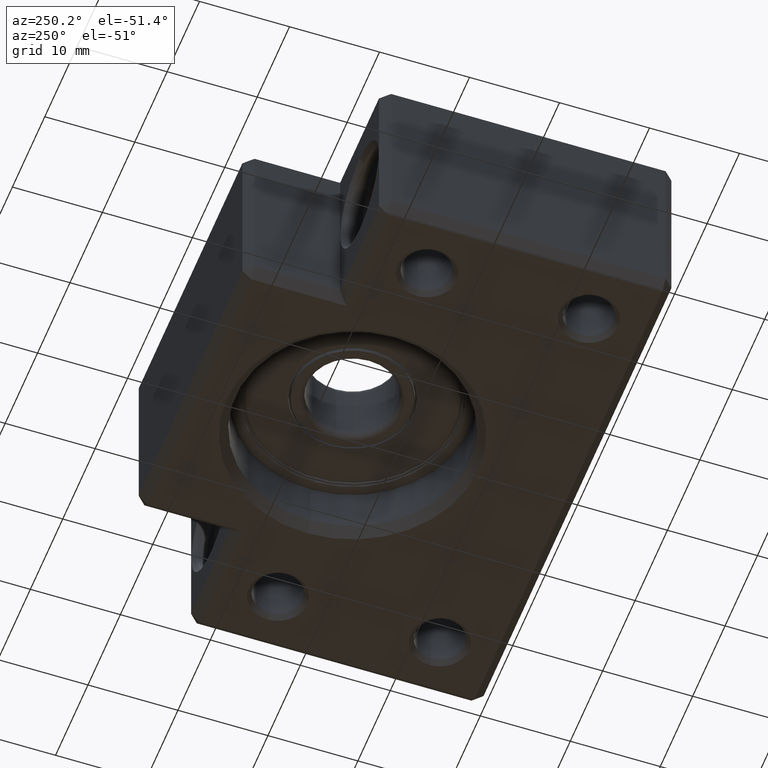
[diagram: clean part render]
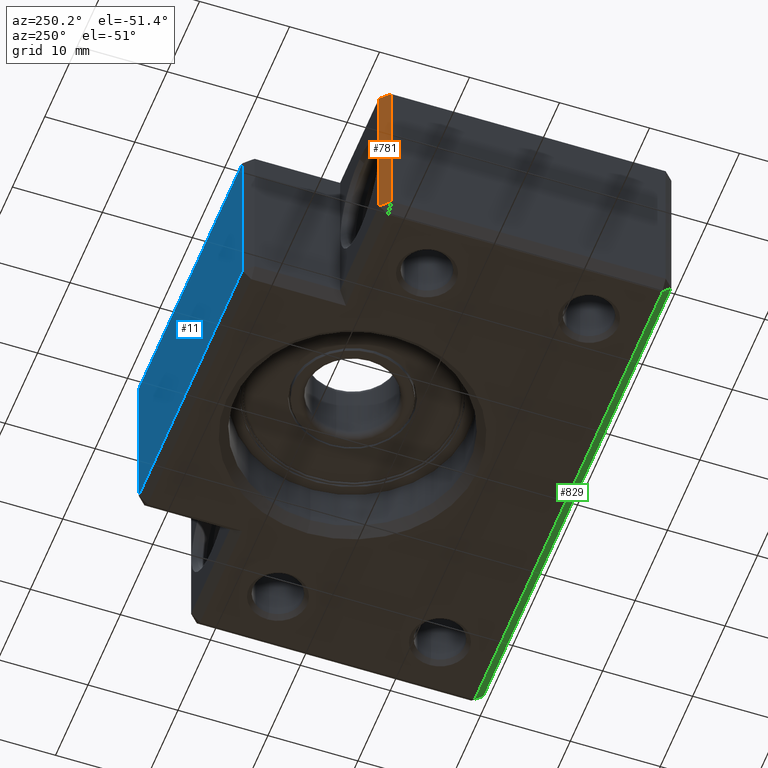
[diagram: same view with three faces highlighted in distinct colors, each labeled with its STEP entity id]
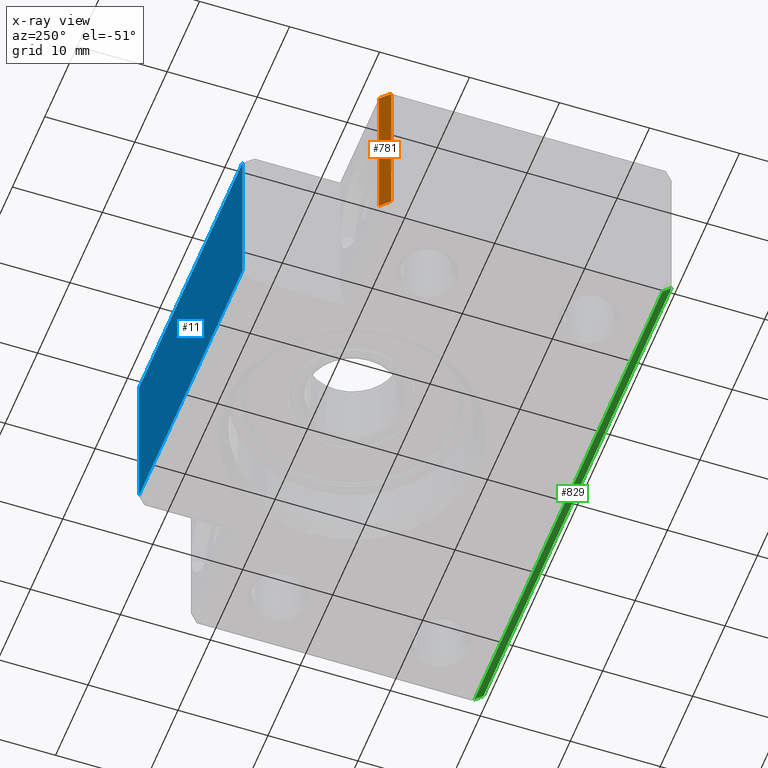
[diagram: x-ray of the same camera — body ghosted, the three highlighted faces saturated]
A machine part, auxiliary view with three faces highlighted in distinct colors.
The next image is the same camera in x-ray (body ghosted, the three faces saturated) — at least one of them is partly hidden behind the body in this view.
Their STEP definitions:

[orange] entity #781 — the highlighted planar face has unit normal (0.7071, -0.7071, 0).
#102 = EDGE_CURVE ( 'NONE', #119, #104, #1082, .T. ) ;
#104 = VERTEX_POINT ( 'NONE', #1075 ) ;
#119 = VERTEX_POINT ( 'NONE', #1111 ) ;
#633 = VERTEX_POINT ( 'NONE', #2064 ) ;
#644 = EDGE_CURVE ( 'NONE', #633, #654, #2104, .T. ) ;
#654 = VERTEX_POINT ( 'NONE', #2095 ) ;
#781 = ADVANCED_FACE ( 'NONE', ( #2358 ), #2357, .F. ) ;
#782 = EDGE_LOOP ( 'NONE', ( #783, #785, #786, #788 ) ) ;
#783 = ORIENTED_EDGE ( 'NONE', *, *, #784, .F. ) ;
#784 = EDGE_CURVE ( 'NONE', #104, #633, #2352, .T. ) ;
#785 = ORIENTED_EDGE ( 'NONE', *, *, #102, .F. ) ;
#786 = ORIENTED_EDGE ( 'NONE', *, *, #787, .F. ) ;
#787 = EDGE_CURVE ( 'NONE', #654, #119, #2348, .T. ) ;
#788 = ORIENTED_EDGE ( 'NONE', *, *, #644, .F. ) ;
#1075 = CARTESIAN_POINT ( 'NONE',  ( -28.99999999999997200, 32.50000000000000000, 8.999999999999985800 ) ) ;
#1076 = DIRECTION ( 'NONE',  ( 0.0000000000000000000, 0.0000000000000000000, 1.000000000000000000 ) ) ;
#1077 = VECTOR ( 'NONE', #1076, 1000.000000000000000 ) ;
#1078 = CARTESIAN_POINT ( 'NONE',  ( -28.99999999999997200, 32.50000000000000000, 10.00000000000000000 ) ) ;
#1082 = LINE ( 'NONE', #1078, #1077 ) ;
#1111 = CARTESIAN_POINT ( 'NONE',  ( -28.99999999999997200, 32.50000000000000000, -8.999999999999985800 ) ) ;
#2064 = CARTESIAN_POINT ( 'NONE',  ( -29.99999999999998600, 31.49999999999998600, 8.999999999999985800 ) ) ;
#2095 = CARTESIAN_POINT ( 'NONE',  ( -29.99999999999998600, 31.49999999999998600, -8.999999999999985800 ) ) ;
#2101 = DIRECTION ( 'NONE',  ( 0.0000000000000000000, 0.0000000000000000000, -1.000000000000000000 ) ) ;
#2102 = VECTOR ( 'NONE', #2101, 1000.000000000000000 ) ;
#2103 = CARTESIAN_POINT ( 'NONE',  ( -29.99999999999998600, 31.49999999999998600, 10.00000000000000000 ) ) ;
#2104 = LINE ( 'NONE', #2103, #2102 ) ;
#2346 = VECTOR ( 'NONE', #2409, 1000.000000000000100 ) ;
#2347 = CARTESIAN_POINT ( 'NONE',  ( -29.49999999999997900, 31.99999999999999300, -8.999999999999985800 ) ) ;
#2348 = LINE ( 'NONE', #2347, #2346 ) ;
#2349 = DIRECTION ( 'NONE',  ( -0.7071067811865474600, -0.7071067811865474600, -0.0000000000000000000 ) ) ;
#2350 = VECTOR ( 'NONE', #2349, 1000.000000000000100 ) ;
#2351 = CARTESIAN_POINT ( 'NONE',  ( -28.99999999999997200, 32.50000000000000000, 8.999999999999985800 ) ) ;
#2352 = LINE ( 'NONE', #2351, #2350 ) ;
#2353 = DIRECTION ( 'NONE',  ( 0.7071067811865474600, 0.7071067811865474600, 0.0000000000000000000 ) ) ;
#2354 = DIRECTION ( 'NONE',  ( 0.7071067811865475700, -0.7071067811865475700, 0.0000000000000000000 ) ) ;
#2355 = CARTESIAN_POINT ( 'NONE',  ( -29.99999999999998600, 31.49999999999998600, 10.00000000000000000 ) ) ;
#2356 = AXIS2_PLACEMENT_3D ( 'NONE', #2355, #2354, #2353 ) ;
#2357 = PLANE ( 'NONE',  #2356 ) ;
#2358 = FACE_OUTER_BOUND ( 'NONE', #782, .T. ) ;
#2409 = DIRECTION ( 'NONE',  ( 0.7071067811865474600, 0.7071067811865474600, -0.0000000000000000000 ) ) ;

[blue] entity #11 — the highlighted planar face has unit normal (0, -1, 0).
#1 = EDGE_CURVE ( 'NONE', #15, #2, #923, .T. ) ;
#2 = VERTEX_POINT ( 'NONE', #919 ) ;
#5 = ORIENTED_EDGE ( 'NONE', *, *, #7, .T. ) ;
#7 = EDGE_CURVE ( 'NONE', #2, #8, #912, .T. ) ;
#8 = VERTEX_POINT ( 'NONE', #908 ) ;
#11 = ADVANCED_FACE ( 'NONE', ( #902 ), #901, .F. ) ;
#13 = VERTEX_POINT ( 'NONE', #956 ) ;
#15 = VERTEX_POINT ( 'NONE', #955 ) ;
#16 = EDGE_LOOP ( 'NONE', ( #18, #17, #5, #100 ) ) ;
#17 = ORIENTED_EDGE ( 'NONE', *, *, #1, .T. ) ;
#18 = ORIENTED_EDGE ( 'NONE', *, *, #22, .T. ) ;
#22 = EDGE_CURVE ( 'NONE', #13, #15, #949, .T. ) ;
#97 = EDGE_CURVE ( 'NONE', #8, #13, #1087, .T. ) ;
#100 = ORIENTED_EDGE ( 'NONE', *, *, #97, .T. ) ;
#897 = DIRECTION ( 'NONE',  ( 1.000000000000000000, 2.040851148208008500E-016, 0.0000000000000000000 ) ) ;
#898 = DIRECTION ( 'NONE',  ( 2.040851148208008500E-016, -1.000000000000000000, 0.0000000000000000000 ) ) ;
#899 = AXIS2_PLACEMENT_3D ( 'NONE', #900, #898, #897 ) ;
#900 = CARTESIAN_POINT ( 'NONE',  ( 17.00000000000001100, 43.00000000000000000, 10.00000000000000000 ) ) ;
#901 = PLANE ( 'NONE',  #899 ) ;
#902 = FACE_OUTER_BOUND ( 'NONE', #16, .T. ) ;
#908 = CARTESIAN_POINT ( 'NONE',  ( -15.99999999999997700, 43.00000000000000000, -8.999999999999985800 ) ) ;
#909 = DIRECTION ( 'NONE',  ( -1.000000000000000000, -2.040851148208008500E-016, 0.0000000000000000000 ) ) ;
#910 = VECTOR ( 'NONE', #909, 1000.000000000000000 ) ;
#911 = CARTESIAN_POINT ( 'NONE',  ( 17.00000000000001100, 43.00000000000000000, -8.999999999999985800 ) ) ;
#912 = LINE ( 'NONE', #911, #910 ) ;
#919 = CARTESIAN_POINT ( 'NONE',  ( 15.99999999999999600, 43.00000000000000000, -8.999999999999985800 ) ) ;
#920 = DIRECTION ( 'NONE',  ( 0.0000000000000000000, 0.0000000000000000000, -1.000000000000000000 ) ) ;
#921 = VECTOR ( 'NONE', #920, 1000.000000000000000 ) ;
#922 = CARTESIAN_POINT ( 'NONE',  ( 15.99999999999999600, 43.00000000000000000, 10.00000000000000000 ) ) ;
#923 = LINE ( 'NONE', #922, #921 ) ;
#946 = DIRECTION ( 'NONE',  ( 1.000000000000000000, 2.040851148208008500E-016, 0.0000000000000000000 ) ) ;
#947 = VECTOR ( 'NONE', #946, 1000.000000000000000 ) ;
#948 = CARTESIAN_POINT ( 'NONE',  ( 17.00000000000001100, 43.00000000000000000, 8.999999999999985800 ) ) ;
#949 = LINE ( 'NONE', #948, #947 ) ;
#955 = CARTESIAN_POINT ( 'NONE',  ( 15.99999999999999600, 43.00000000000000000, 8.999999999999985800 ) ) ;
#956 = CARTESIAN_POINT ( 'NONE',  ( -15.99999999999997700, 43.00000000000000000, 8.999999999999985800 ) ) ;
#1084 = DIRECTION ( 'NONE',  ( 0.0000000000000000000, 0.0000000000000000000, 1.000000000000000000 ) ) ;
#1085 = VECTOR ( 'NONE', #1084, 1000.000000000000000 ) ;
#1086 = CARTESIAN_POINT ( 'NONE',  ( -15.99999999999997700, 43.00000000000000000, 10.00000000000000000 ) ) ;
#1087 = LINE ( 'NONE', #1086, #1085 ) ;

[green] entity #829 — the highlighted planar face has unit normal (-0, 0.7071, 0.7071).
#501 = VERTEX_POINT ( 'NONE', #1860 ) ;
#505 = EDGE_CURVE ( 'NONE', #501, #506, #1848, .T. ) ;
#506 = VERTEX_POINT ( 'NONE', #1844 ) ;
#661 = VERTEX_POINT ( 'NONE', #2145 ) ;
#669 = EDGE_CURVE ( 'NONE', #675, #661, #2136, .T. ) ;
#675 = VERTEX_POINT ( 'NONE', #2123 ) ;
#829 = ADVANCED_FACE ( 'NONE', ( #2411 ), #2410, .F. ) ;
#830 = EDGE_LOOP ( 'NONE', ( #831, #884, #885, #887 ) ) ;
#831 = ORIENTED_EDGE ( 'NONE', *, *, #832, .T. ) ;
#832 = EDGE_CURVE ( 'NONE', #501, #661, #2471, .T. ) ;
#884 = ORIENTED_EDGE ( 'NONE', *, *, #669, .F. ) ;
#885 = ORIENTED_EDGE ( 'NONE', *, *, #886, .F. ) ;
#886 = EDGE_CURVE ( 'NONE', #506, #675, #2528, .T. ) ;
#887 = ORIENTED_EDGE ( 'NONE', *, *, #505, .F. ) ;
#1844 = CARTESIAN_POINT ( 'NONE',  ( -28.99999999999998600, 1.000000000000014900, -10.00000000000000000 ) ) ;
#1845 = DIRECTION ( 'NONE',  ( -1.000000000000000000, -1.224646799147353200E-016, 0.0000000000000000000 ) ) ;
#1846 = VECTOR ( 'NONE', #1845, 1000.000000000000000 ) ;
#1847 = CARTESIAN_POINT ( 'NONE',  ( -30.00000000000000000, 1.000000000000014700, -10.00000000000000000 ) ) ;
#1848 = LINE ( 'NONE', #1847, #1846 ) ;
#1860 = CARTESIAN_POINT ( 'NONE',  ( 29.00000000000001100, 1.000000000000022000, -10.00000000000000000 ) ) ;
#2123 = CARTESIAN_POINT ( 'NONE',  ( -28.99999999999998600, 1.224646799147371200E-016, -8.999999999999985800 ) ) ;
#2133 = DIRECTION ( 'NONE',  ( 1.000000000000000000, 1.224646799147353200E-016, 0.0000000000000000000 ) ) ;
#2134 = VECTOR ( 'NONE', #2133, 1000.000000000000000 ) ;
#2135 = CARTESIAN_POINT ( 'NONE',  ( -30.00000000000000000, 0.0000000000000000000, -8.999999999999985800 ) ) ;
#2136 = LINE ( 'NONE', #2135, #2134 ) ;
#2145 = CARTESIAN_POINT ( 'NONE',  ( 29.00000000000001100, 7.225416114969384800E-015, -8.999999999999985800 ) ) ;
#2410 = PLANE ( 'NONE',  #2475 ) ;
#2411 = FACE_OUTER_BOUND ( 'NONE', #830, .T. ) ;
#2468 = DIRECTION ( 'NONE',  ( 0.0000000000000000000, -0.7071067811865474600, 0.7071067811865474600 ) ) ;
#2469 = VECTOR ( 'NONE', #2468, 1000.000000000000100 ) ;
#2470 = CARTESIAN_POINT ( 'NONE',  ( 29.00000000000001100, 7.225416114969384800E-015, -8.999999999999985800 ) ) ;
#2471 = LINE ( 'NONE', #2470, #2469 ) ;
#2472 = DIRECTION ( 'NONE',  ( 0.0000000000000000000, -0.7071067811865474600, 0.7071067811865474600 ) ) ;
#2473 = DIRECTION ( 'NONE',  ( -8.659560562354932900E-017, 0.7071067811865475700, 0.7071067811865475700 ) ) ;
#2474 = CARTESIAN_POINT ( 'NONE',  ( -30.00000000000000000, 0.0000000000000000000, -8.999999999999985800 ) ) ;
#2475 = AXIS2_PLACEMENT_3D ( 'NONE', #2474, #2473, #2472 ) ;
#2519 = DIRECTION ( 'NONE',  ( -0.0000000000000000000, -0.7071067811865474600, 0.7071067811865474600 ) ) ;
#2520 = VECTOR ( 'NONE', #2519, 1000.000000000000100 ) ;
#2521 = CARTESIAN_POINT ( 'NONE',  ( -28.99999999999998600, 1.224646799147371200E-016, -8.999999999999985800 ) ) ;
#2528 = LINE ( 'NONE', #2521, #2520 ) ;